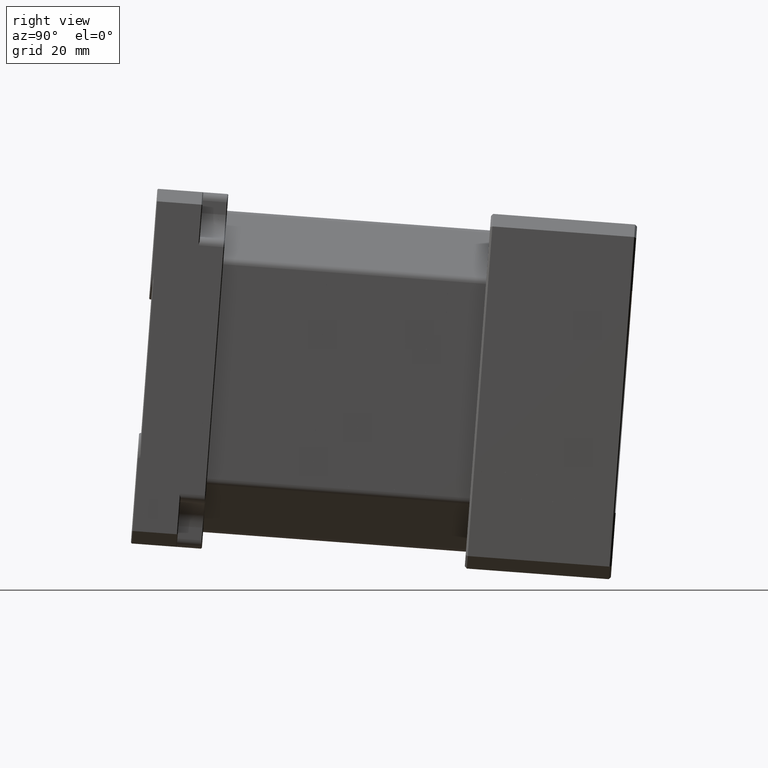
[diagram: clean part render]
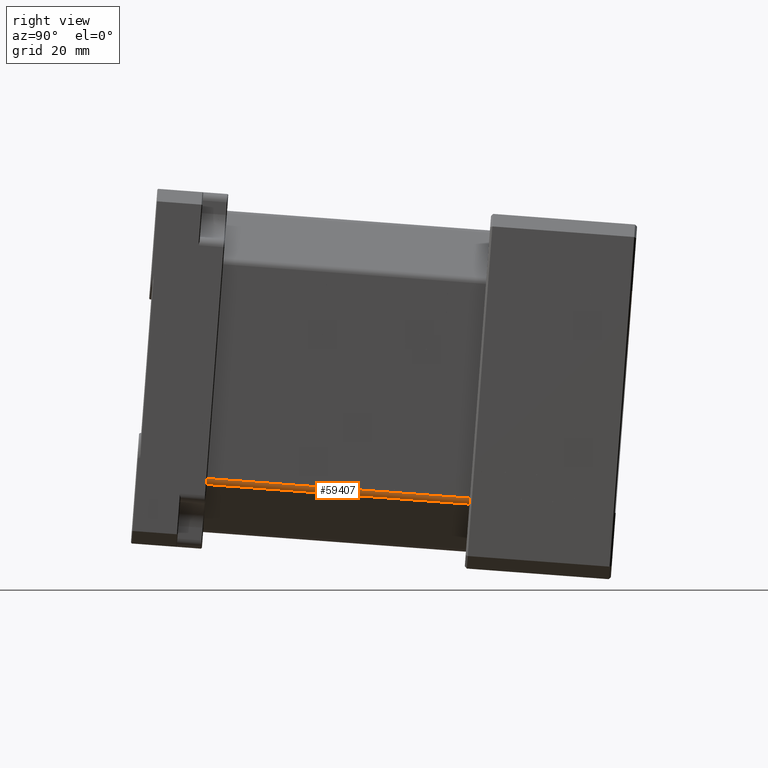
[diagram: same view with one face highlighted and labeled with its STEP entity id]
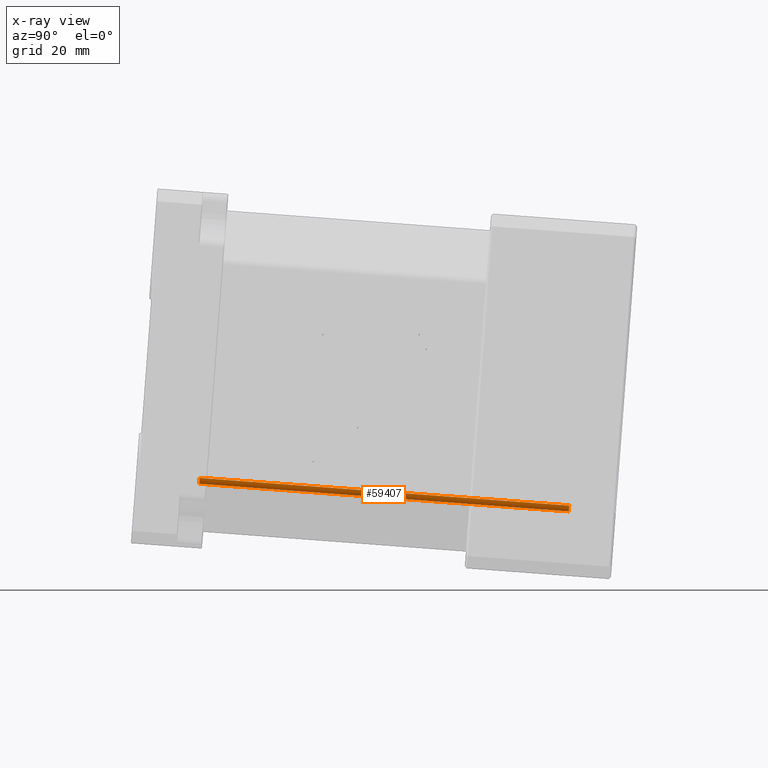
[diagram: x-ray of the same camera — body ghosted, the highlighted face saturated]
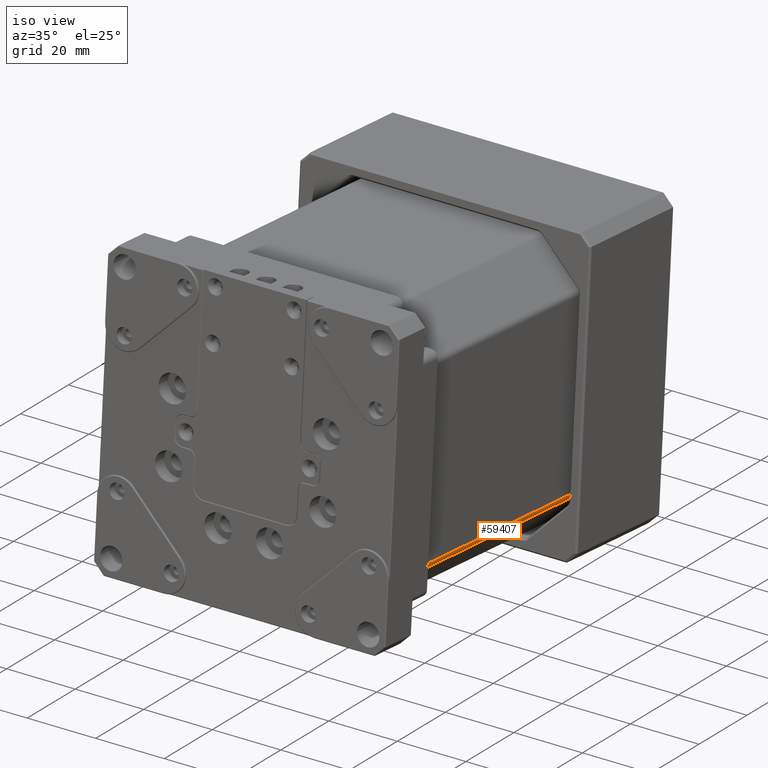
[diagram: same view with one face highlighted and labeled with its STEP entity id]
A machine part, right view. The second image highlights one B-rep face of the part: STEP entity #59407.
The next image is the same camera in x-ray: the body ghosted, the highlighted face saturated — about 0% of this face is hidden behind the body in this view.
A second angle (iso view) of the same face is appended — the face is thin or edge-on in the first view.
In plain terms, the highlighted cylindrical surface (edge-blend (fillet) strip) has radius 2 mm, axis along (0, -0.9972, 0.0746).
Its self-contained STEP definition (entity closure, byte-faithful):
#556 = LINE ( 'NONE', #17387, #7370 ) ;
#2310 = CARTESIAN_POINT ( 'NONE',  ( 138.6146402091089840, -26.97006674530899772, -42.06579839720559733 ) ) ;
#2396 = VERTEX_POINT ( 'NONE', #6811 ) ;
#2659 = CYLINDRICAL_SURFACE ( 'NONE', #66406, 2.000000000000001776 ) ;
#3422 = CIRCLE ( 'NONE', #44623, 2.000000000000001776 ) ;
#6811 = CARTESIAN_POINT ( 'NONE',  ( 140.6146402091089840, -26.97006674530899772, -42.06579839720559733 ) ) ;
#7370 = VECTOR ( 'NONE', #49679, 1000.000000000000114 ) ;
#7658 = ORIENTED_EDGE ( 'NONE', *, *, #55004, .T. ) ;
#8163 = ORIENTED_EDGE ( 'NONE', *, *, #22479, .T. ) ;
#17387 = CARTESIAN_POINT ( 'NONE',  ( 140.0288537714820052, 61.47706204554139475, -50.09981412128300349 ) ) ;
#21998 = LINE ( 'NONE', #70469, #63611 ) ;
#22479 = EDGE_CURVE ( 'NONE', #2396, #67693, #3422, .T. ) ;
#24189 = DIRECTION ( 'NONE',  ( -1.729890813153095029E-15, 0.9972141595530139568, -0.07459168845773739287 ) ) ;
#24546 = CARTESIAN_POINT ( 'NONE',  ( 138.6146402091089840, 61.58255062299860327, -48.68954033225270450 ) ) ;
#26848 = ORIENTED_EDGE ( 'NONE', *, *, #69290, .F. ) ;
#27669 = EDGE_LOOP ( 'NONE', ( #26848, #7658, #70663, #8163 ) ) ;
#28539 = EDGE_CURVE ( 'NONE', #2396, #67666, #21998, .T. ) ;
#28812 = CARTESIAN_POINT ( 'NONE',  ( 138.6146402091089840, 61.38310779108800119, -48.67462199456110028 ) ) ;
#44198 = AXIS2_PLACEMENT_3D ( 'NONE', #28812, #50695, #45320 ) ;
#44623 = AXIS2_PLACEMENT_3D ( 'NONE', #2310, #24189, #67989 ) ;
#45320 = DIRECTION ( 'NONE',  ( 1.000000000000000000, 0.000000000000000000, 0.000000000000000000 ) ) ;
#46410 = DIRECTION ( 'NONE',  ( 0.000000000000000000, -0.9972141595530139568, 0.07459168845773739287 ) ) ;
#48980 = CARTESIAN_POINT ( 'NONE',  ( 140.0288537714820052, 61.27761921363070030, -50.08489578359149874 ) ) ;
#49679 = DIRECTION ( 'NONE',  ( 8.949057200030818454E-16, -0.9972141595530138458, 0.07459168845773737899 ) ) ;
#49944 = CIRCLE ( 'NONE', #44198, 2.000000000000001776 ) ;
#49960 = DIRECTION ( 'NONE',  ( -8.949057200030818454E-16, 0.9972141595530138458, -0.07459168845773737899 ) ) ;
#50695 = DIRECTION ( 'NONE',  ( 0.000000000000000000, -0.9972141595530139568, 0.07459168845773739287 ) ) ;
#50795 = CARTESIAN_POINT ( 'NONE',  ( 140.0288537714820052, -27.07555532276625243, -43.47607218623594605 ) ) ;
#51782 = FACE_OUTER_BOUND ( 'NONE', #27669, .T. ) ;
#55004 = EDGE_CURVE ( 'NONE', #63900, #67666, #49944, .T. ) ;
#59407 = ADVANCED_FACE ( 'NONE', ( #51782 ), #2659, .T. ) ;
#61862 = DIRECTION ( 'NONE',  ( 1.000000000000000000, 0.000000000000000000, 0.000000000000000000 ) ) ;
#63611 = VECTOR ( 'NONE', #49960, 1000.000000000000114 ) ;
#63900 = VERTEX_POINT ( 'NONE', #48980 ) ;
#66406 = AXIS2_PLACEMENT_3D ( 'NONE', #24546, #46410, #61862 ) ;
#67012 = CARTESIAN_POINT ( 'NONE',  ( 140.6146402091089840, 61.38310779108800119, -48.67462199456110028 ) ) ;
#67666 = VERTEX_POINT ( 'NONE', #67012 ) ;
#67693 = VERTEX_POINT ( 'NONE', #50795 ) ;
#67989 = DIRECTION ( 'NONE',  ( 1.000000000000000000, 1.734723475976805517E-15, 0.000000000000000000 ) ) ;
#69290 = EDGE_CURVE ( 'NONE', #63900, #67693, #556, .T. ) ;
#70469 = CARTESIAN_POINT ( 'NONE',  ( 140.6146402091089840, 61.58255062299860327, -48.68954033225270450 ) ) ;
#70663 = ORIENTED_EDGE ( 'NONE', *, *, #28539, .F. ) ;